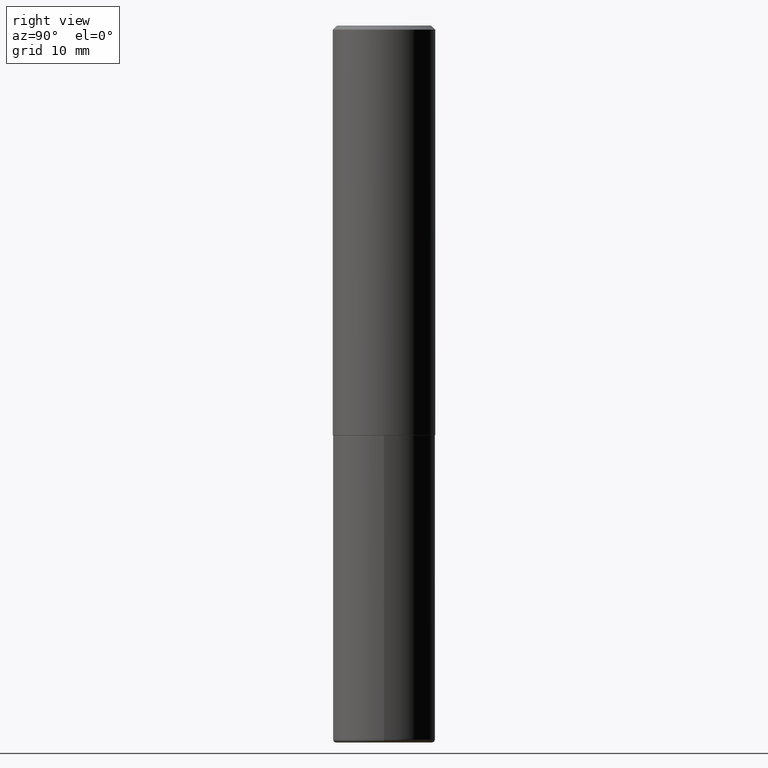
[diagram: clean part render]
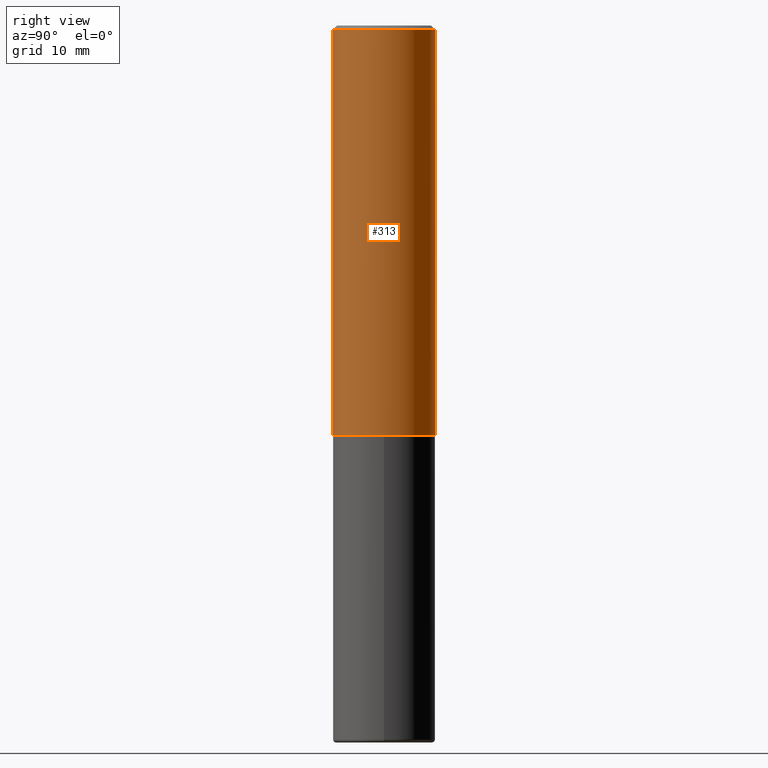
[diagram: same view with one face highlighted and labeled with its STEP entity id]
A machine part, right view. The second image highlights one B-rep face of the part: STEP entity #313.
In plain terms, the highlighted cylindrical surface (partial cylindrical patch) has radius 6.35 mm, axis along (-0, 0, 1).
Its self-contained STEP definition (entity closure, byte-faithful):
#11 = CYLINDRICAL_SURFACE ( 'NONE', #283, 0.2500000000000001110 ) ;
#23 = VERTEX_POINT ( 'NONE', #216 ) ;
#33 = CARTESIAN_POINT ( 'NONE',  ( -1.745740669421519543E-15, -0.2500000000000072164, -1.998999999999998778 ) ) ;
#48 = LINE ( 'NONE', #242, #410 ) ;
#57 = AXIS2_PLACEMENT_3D ( 'NONE', #287, #129, #323 ) ;
#81 = DIRECTION ( 'NONE',  ( -2.445737183286911680E-29, 3.491097007558327602E-15, 1.000000000000000000 ) ) ;
#89 = VERTEX_POINT ( 'NONE', #359 ) ;
#96 = LINE ( 'NONE', #254, #362 ) ;
#103 = EDGE_CURVE ( 'NONE', #183, #334, #250, .T. ) ;
#105 = ORIENTED_EDGE ( 'NONE', *, *, #103, .T. ) ;
#107 = ORIENTED_EDGE ( 'NONE', *, *, #268, .T. ) ;
#129 = DIRECTION ( 'NONE',  ( -2.445737183286911680E-29, 3.491097007558327602E-15, 1.000000000000000000 ) ) ;
#149 = EDGE_CURVE ( 'NONE', #183, #23, #96, .T. ) ;
#174 = CARTESIAN_POINT ( 'NONE',  ( 0.000000000000000000, 0.000000000000000000, 0.000000000000000000 ) ) ;
#183 = VERTEX_POINT ( 'NONE', #33 ) ;
#198 = FACE_OUTER_BOUND ( 'NONE', #363, .T. ) ;
#199 = EDGE_CURVE ( 'NONE', #23, #89, #376, .T. ) ;
#216 = CARTESIAN_POINT ( 'NONE',  ( -1.715124499442882299E-15, -0.2500000000000000555, -0.01999999999999918510 ) ) ;
#224 = DIRECTION ( 'NONE',  ( -6.982962677686265922E-15, -1.000000000000000000, 3.483106191921935554E-15 ) ) ;
#234 = DIRECTION ( 'NONE',  ( -2.445737183286911680E-29, 3.491097007558327602E-15, 1.000000000000000000 ) ) ;
#242 = CARTESIAN_POINT ( 'NONE',  ( 1.776356839400251254E-15, 0.2500000000000001110, -8.727742518895823935E-16 ) ) ;
#250 = CIRCLE ( 'NONE', #57, 0.2500000000000002776 ) ;
#253 = CARTESIAN_POINT ( 'NONE',  ( 4.891474366573836672E-31, -6.982194015116674235E-17, -0.02000000000000005593 ) ) ;
#254 = CARTESIAN_POINT ( 'NONE',  ( -1.745740669421567467E-15, -0.2500000000000001110, 8.727742518895823935E-16 ) ) ;
#259 = CARTESIAN_POINT ( 'NONE',  ( 1.776356839400276103E-15, 0.2499999999999933109, -1.999000000000000554 ) ) ;
#268 = EDGE_CURVE ( 'NONE', #334, #89, #48, .T. ) ;
#283 = AXIS2_PLACEMENT_3D ( 'NONE', #174, #234, #333 ) ;
#287 = CARTESIAN_POINT ( 'NONE',  ( 4.889028629390535480E-29, -6.978702918109095527E-15, -1.998999999999999666 ) ) ;
#305 = AXIS2_PLACEMENT_3D ( 'NONE', #253, #390, #224 ) ;
#313 = ADVANCED_FACE ( 'NONE', ( #198 ), #11, .T. ) ;
#314 = ORIENTED_EDGE ( 'NONE', *, *, #199, .F. ) ;
#317 = DIRECTION ( 'NONE',  ( -2.445737183286911680E-29, 3.491097007558327602E-15, 1.000000000000000000 ) ) ;
#323 = DIRECTION ( 'NONE',  ( -6.982962677686265922E-15, -1.000000000000000000, 3.278217592397112312E-15 ) ) ;
#333 = DIRECTION ( 'NONE',  ( -6.982962677686266711E-15, -1.000000000000000000, 3.491097007558327996E-15 ) ) ;
#334 = VERTEX_POINT ( 'NONE', #259 ) ;
#359 = CARTESIAN_POINT ( 'NONE',  ( 1.745740669421566875E-15, 0.2499999999999999167, -0.02000000000000092676 ) ) ;
#362 = VECTOR ( 'NONE', #317, 39.37007874015748143 ) ;
#363 = EDGE_LOOP ( 'NONE', ( #105, #107, #314, #384 ) ) ;
#376 = CIRCLE ( 'NONE', #305, 0.2500000000000000000 ) ;
#384 = ORIENTED_EDGE ( 'NONE', *, *, #149, .F. ) ;
#390 = DIRECTION ( 'NONE',  ( -2.445737183286911680E-29, 3.491097007558327602E-15, 1.000000000000000000 ) ) ;
#410 = VECTOR ( 'NONE', #81, 39.37007874015748143 ) ;